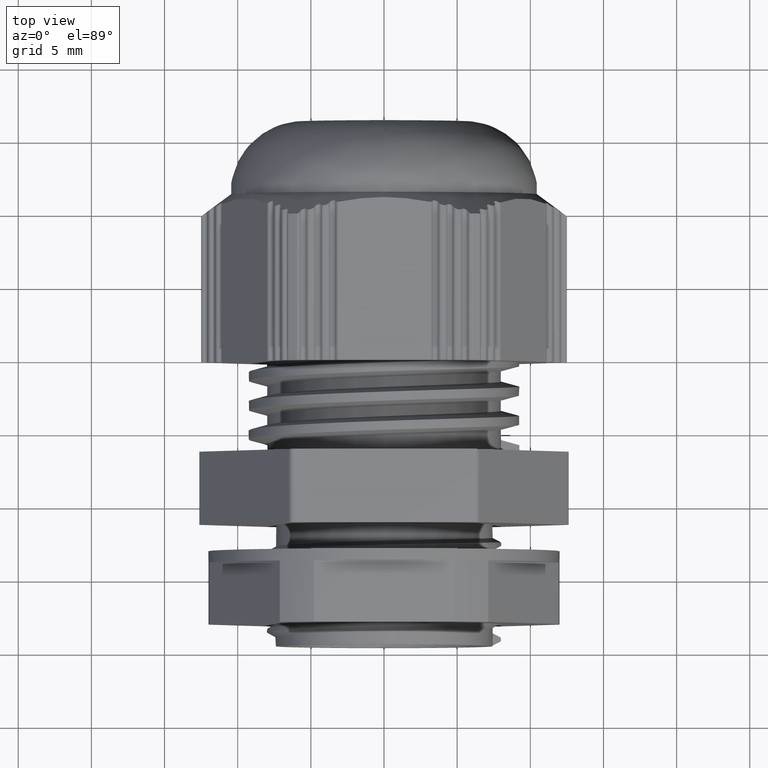
[diagram: clean part render]
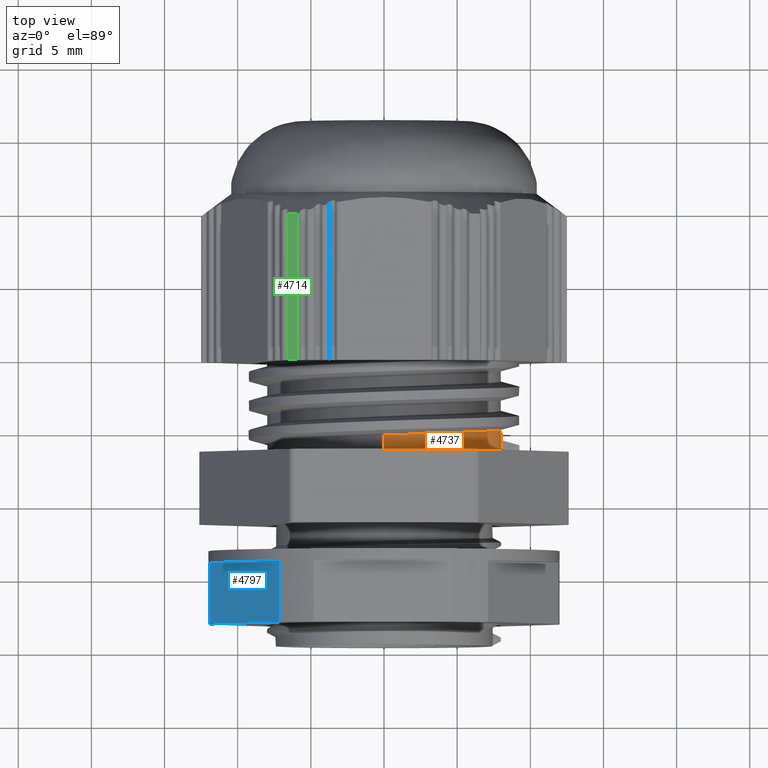
[diagram: same view with three faces highlighted in distinct colors, each labeled with its STEP entity id]
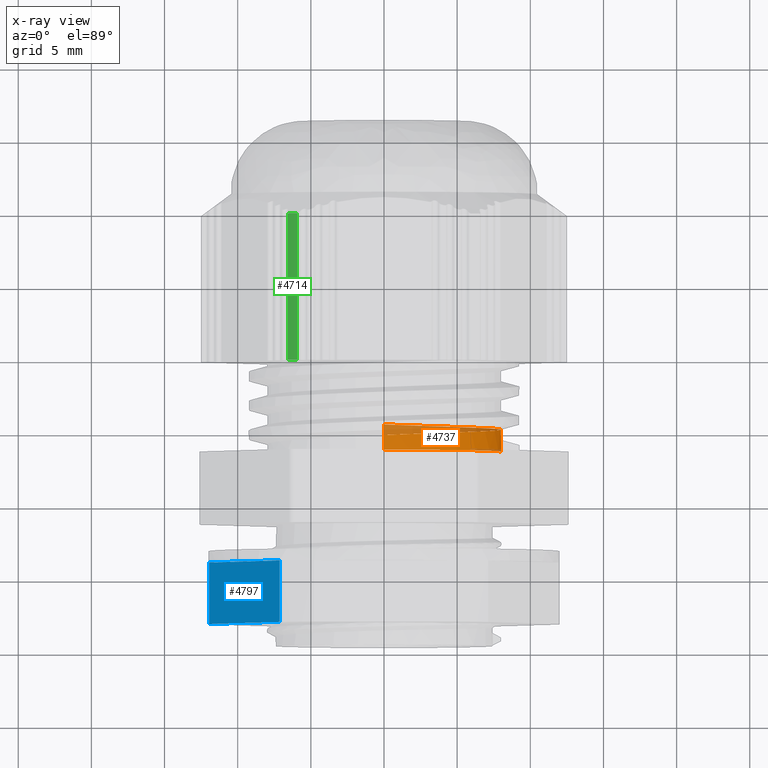
[diagram: x-ray of the same camera — body ghosted, the three highlighted faces saturated]
A machine part, top view with three faces highlighted in distinct colors.
The next image is the same camera in x-ray (body ghosted, the three faces saturated) — at least one of them is partly hidden behind the body in this view.
Their STEP definitions:

[orange] entity #4737 — the highlighted cylindrical surface (partial cylindrical patch) has radius 8 mm, axis along (-0, -1, -0).
#459 = VECTOR ( 'NONE', #1659, 1000.000000000000000 ) ;
#483 = VECTOR ( 'NONE', #2104, 1000.000000000000000 ) ;
#500 = VECTOR ( 'NONE', #1924, 1000.000000000000000 ) ;
#508 = AXIS2_PLACEMENT_3D ( 'NONE', #1741, #1711, #1743 ) ;
#514 = CIRCLE ( 'NONE', #508, 8.000000000000007100 ) ;
#1628 = CARTESIAN_POINT ( 'NONE',  ( -2.889640176918248300E-015, 0.6899474012563009400, -8.000000000000033800 ) ) ;
#1647 = CARTESIAN_POINT ( 'NONE',  ( 9.797174393178835500E-016, -16.46492342334570600, 8.000000000000007100 ) ) ;
#1659 = DIRECTION ( 'NONE',  ( -0.0000000000000000000, -1.000000000000000000, -0.0000000000000000000 ) ) ;
#1660 = LINE ( 'NONE', #1647, #459 ) ;
#1662 = CARTESIAN_POINT ( 'NONE',  ( 4.944271909998739100, -0.1100525987437229000, 6.805206466816645900 ) ) ;
#1663 = CARTESIAN_POINT ( 'NONE',  ( 1.267075522596549300, 0.6386931197094413100, -8.000000000000014200 ) ) ;
#1664 = CARTESIAN_POINT ( 'NONE',  ( 4.944271909999593500, 0.4899474012562768900, -6.805206466816023300 ) ) ;
#1665 = CARTESIAN_POINT ( 'NONE',  ( 1.267075522596033500, -0.2587983171968670800, 8.000000000000014200 ) ) ;
#1666 = CARTESIAN_POINT ( 'NONE',  ( 6.472135954999892200, 0.3899474012562771400, -4.702282018339387200 ) ) ;
#1667 = CARTESIAN_POINT ( 'NONE',  ( 8.000000000000016000, 0.1899474012562770200, 5.027733127934124100E-013 ) ) ;
#1668 = CARTESIAN_POINT ( 'NONE',  ( 7.999999999999852600, 0.08994740125627699600, 2.599357569863759700 ) ) ;
#1669 = CARTESIAN_POINT ( 'NONE',  ( 2.472135954999104400, -0.2100525987437229500, 7.608452130361400600 ) ) ;
#1672 = CARTESIAN_POINT ( 'NONE',  ( -1.333680081654574600E-015, -0.3100525987437047200, 8.000000000000005300 ) ) ;
#1675 = CARTESIAN_POINT ( 'NONE',  ( 2.472135955000063200, 0.5899474012562772000, -7.608452130361088800 ) ) ;
#1679 = CARTESIAN_POINT ( 'NONE',  ( 8.000000000000177600, 0.2899474012562770500, -2.599357569862752900 ) ) ;
#1681 = CARTESIAN_POINT ( 'NONE',  ( 6.472135954999299800, -0.01005259874372285700, 4.702282018340202500 ) ) ;
#1711 = DIRECTION ( 'NONE',  ( -0.0000000000000000000, 1.000000000000000000, -0.0000000000000000000 ) ) ;
#1741 = CARTESIAN_POINT ( 'NONE',  ( 0.0000000000000000000, -1.309188576519718400, 0.0000000000000000000 ) ) ;
#1743 = DIRECTION ( 'NONE',  ( 0.0000000000000000000, 0.0000000000000000000, -1.000000000000000000 ) ) ;
#1903 = LINE ( 'NONE', #1920, #500 ) ;
#1920 = CARTESIAN_POINT ( 'NONE',  ( 8.000000000000007100, -1.166593736519519400, 5.027733127934115100E-013 ) ) ;
#1924 = DIRECTION ( 'NONE',  ( 0.0000000000000000000, 1.000000000000000000, 0.0000000000000000000 ) ) ;
#2102 = CARTESIAN_POINT ( 'NONE',  ( 0.0000000000000000000, -16.46492342334570600, -8.000000000000007100 ) ) ;
#2104 = DIRECTION ( 'NONE',  ( -0.0000000000000000000, -1.000000000000000000, -0.0000000000000000000 ) ) ;
#2114 = LINE ( 'NONE', #2102, #483 ) ;
#2201 = CARTESIAN_POINT ( 'NONE',  ( 8.000000000000168800, -0.4231348742956991300, -2.599357569862750200 ) ) ;
#2209 = CARTESIAN_POINT ( 'NONE',  ( 1.267075522596551800, -0.07438915584253526200, -8.000000000000003600 ) ) ;
#2211 = CARTESIAN_POINT ( 'NONE',  ( 4.890160299400107300E-015, -0.02313487429567999400, -8.000000000000007100 ) ) ;
#2217 = CARTESIAN_POINT ( 'NONE',  ( 6.472135954999883400, -0.3231348742956993700, -4.702282018339382800 ) ) ;
#2255 = CARTESIAN_POINT ( 'NONE',  ( 8.000000000000007100, -0.5231348742956963800, 5.027733127934116100E-013 ) ) ;
#2263 = CARTESIAN_POINT ( 'NONE',  ( 2.472135955000060600, -0.1231348742956992600, -7.608452130361079900 ) ) ;
#2269 = CARTESIAN_POINT ( 'NONE',  ( 4.944271909999588200, -0.2231348742956991700, -6.805206466816014400 ) ) ;
#3030 = CARTESIAN_POINT ( 'NONE',  ( -2.889640176918248300E-015, 0.6899474012563009400, -8.000000000000033800 ) ) ;
#3066 = CARTESIAN_POINT ( 'NONE',  ( 9.797174393178835500E-016, -1.309188576519718400, 8.000000000000007100 ) ) ;
#3068 = CARTESIAN_POINT ( 'NONE',  ( 8.000000000000007100, -0.5231348742956963800, 5.027733127934116100E-013 ) ) ;
#3100 = CARTESIAN_POINT ( 'NONE',  ( 8.000000000000007100, -1.309188576519718000, 5.027733127934115100E-013 ) ) ;
#3118 = CARTESIAN_POINT ( 'NONE',  ( 4.890160299400107300E-015, -0.02313487429567999400, -8.000000000000007100 ) ) ;
#3131 = CARTESIAN_POINT ( 'NONE',  ( -1.333680081654574600E-015, -0.3100525987437047200, 8.000000000000005300 ) ) ;
#3199 = AXIS2_PLACEMENT_3D ( 'NONE', #13280, #13260, #13289 ) ;
#4722 =( BOUNDED_CURVE ( )  B_SPLINE_CURVE ( 2, ( #1628, #1663, #1675, #1664, #1666, #1679, #1667, #1668, #1681, #1662, #1669, #1665, #1672 ),
 .UNSPECIFIED., .F., .T. ) 
 B_SPLINE_CURVE_WITH_KNOTS ( ( 3, 2, 2, 2, 2, 2, 3 ),
 ( 0.0000000000000000000, 0.002502644857300732600, 0.007507934571901191300, 0.01251322428650165000, 0.01751851400110211400, 0.02252380371570257200, 0.02502644857300230900 ),
 .UNSPECIFIED. ) 
 CURVE ( )  GEOMETRIC_REPRESENTATION_ITEM ( )  RATIONAL_B_SPLINE_CURVE ( ( 0.9755282581475768200, 0.9755282581475719400, 1.000000000000000000, 0.9510565162951535300, 1.000000000000000000, 0.9510565162951535300, 1.000000000000000000, 0.9510565162951535300, 1.000000000000000000, 0.9510565162951535300, 1.000000000000000000, 0.9755282581475817100, 0.9755282581475768200 ) ) 
 REPRESENTATION_ITEM ( '' )  );
#4737 = ADVANCED_FACE ( 'NONE', ( #13284 ), #13241, .T. ) ;
#9179 = EDGE_LOOP ( 'NONE', ( #12919, #12900, #12938, #12921, #12890, #12933 ) ) ;
#10920 = EDGE_CURVE ( 'NONE', #14176, #12416, #1660, .T. ) ;
#10927 = EDGE_CURVE ( 'NONE', #14167, #14176, #4722, .T. ) ;
#10933 = EDGE_CURVE ( 'NONE', #12416, #14218, #514, .T. ) ;
#10946 = EDGE_CURVE ( 'NONE', #14218, #14148, #1903, .T. ) ;
#10962 = EDGE_CURVE ( 'NONE', #14167, #14222, #2114, .T. ) ;
#10965 = EDGE_CURVE ( 'NONE', #14222, #14148, #11951, .T. ) ;
#11951 =( BOUNDED_CURVE ( )  B_SPLINE_CURVE ( 2, ( #2211, #2209, #2263, #2269, #2217, #2201, #2255 ),
 .UNSPECIFIED., .F., .T. ) 
 B_SPLINE_CURVE_WITH_KNOTS ( ( 3, 2, 2, 3 ),
 ( 0.2127204634814354700, 0.2152219239073125100, 0.2202248447590656500, 0.2252277656108187500 ),
 .UNSPECIFIED. ) 
 CURVE ( )  GEOMETRIC_REPRESENTATION_ITEM ( )  RATIONAL_B_SPLINE_CURVE ( ( 0.9755282581475768200, 0.9755282581475719400, 1.000000000000000000, 0.9510565162951535300, 1.000000000000000000, 0.9510565162951535300, 1.000000000000000000 ) ) 
 REPRESENTATION_ITEM ( '' )  );
#12416 = VERTEX_POINT ( 'NONE', #3066 ) ;
#12890 = ORIENTED_EDGE ( 'NONE', *, *, #10965, .F. ) ;
#12900 = ORIENTED_EDGE ( 'NONE', *, *, #10920, .T. ) ;
#12919 = ORIENTED_EDGE ( 'NONE', *, *, #10927, .T. ) ;
#12921 = ORIENTED_EDGE ( 'NONE', *, *, #10946, .T. ) ;
#12933 = ORIENTED_EDGE ( 'NONE', *, *, #10962, .F. ) ;
#12938 = ORIENTED_EDGE ( 'NONE', *, *, #10933, .T. ) ;
#13241 = CYLINDRICAL_SURFACE ( 'NONE', #3199, 8.000000000000007100 ) ;
#13260 = DIRECTION ( 'NONE',  ( -0.0000000000000000000, -1.000000000000000000, -0.0000000000000000000 ) ) ;
#13280 = CARTESIAN_POINT ( 'NONE',  ( 0.0000000000000000000, -16.46492342334570600, 0.0000000000000000000 ) ) ;
#13284 = FACE_OUTER_BOUND ( 'NONE', #9179, .T. ) ;
#13289 = DIRECTION ( 'NONE',  ( 0.0000000000000000000, 0.0000000000000000000, -1.000000000000000000 ) ) ;
#14148 = VERTEX_POINT ( 'NONE', #3068 ) ;
#14167 = VERTEX_POINT ( 'NONE', #3030 ) ;
#14176 = VERTEX_POINT ( 'NONE', #3131 ) ;
#14218 = VERTEX_POINT ( 'NONE', #3100 ) ;
#14222 = VERTEX_POINT ( 'NONE', #3118 ) ;

[blue] entity #4797 — the highlighted planar face has unit normal (0.866, 0, -0.5).
#170 = VECTOR ( 'NONE', #10157, 1000.000000000000000 ) ;
#250 = VECTOR ( 'NONE', #10319, 1000.000000000000200 ) ;
#275 = VECTOR ( 'NONE', #10350, 1000.000000000000000 ) ;
#340 = VECTOR ( 'NONE', #6617, 1000.000000000000000 ) ;
#2985 = CARTESIAN_POINT ( 'NONE',  ( -7.128363679972483000, -8.910007087178495800, 9.653311931459027700 ) ) ;
#2987 = CARTESIAN_POINT ( 'NONE',  ( -7.128363679972486500, -13.11000708717849700, 9.653311931459024100 ) ) ;
#2999 = CARTESIAN_POINT ( 'NONE',  ( -11.92419520328518500, -13.11000708717849700, 1.346688068540966800 ) ) ;
#3001 = CARTESIAN_POINT ( 'NONE',  ( -11.92419520328518500, -8.910007087178495800, 1.346688068540966800 ) ) ;
#3242 = AXIS2_PLACEMENT_3D ( 'NONE', #5892, #5915, #5905 ) ;
#4797 = ADVANCED_FACE ( 'NONE', ( #5889 ), #5896, .F. ) ;
#5889 = FACE_OUTER_BOUND ( 'NONE', #9319, .T. ) ;
#5892 = CARTESIAN_POINT ( 'NONE',  ( -12.70170592217175600, -8.110007087178498600, 2.775557561562891400E-014 ) ) ;
#5896 = PLANE ( 'NONE',  #3242 ) ;
#5905 = DIRECTION ( 'NONE',  ( -0.4999999999999995600, 0.0000000000000000000, -0.8660254037844389300 ) ) ;
#5915 = DIRECTION ( 'NONE',  ( 0.8660254037844389300, 0.0000000000000000000, -0.4999999999999995600 ) ) ;
#6601 = LINE ( 'NONE', #6613, #340 ) ;
#6613 = CARTESIAN_POINT ( 'NONE',  ( -11.92419520328518500, -8.910007087178495800, 1.346688068540962300 ) ) ;
#6617 = DIRECTION ( 'NONE',  ( 0.0000000000000000000, 1.000000000000000000, 0.0000000000000000000 ) ) ;
#9319 = EDGE_LOOP ( 'NONE', ( #13718, #13650, #13627, #13711 ) ) ;
#10157 = DIRECTION ( 'NONE',  ( 0.4999999999999995600, -0.0000000000000000000, 0.8660254037844389300 ) ) ;
#10180 = LINE ( 'NONE', #10189, #170 ) ;
#10189 = CARTESIAN_POINT ( 'NONE',  ( -12.70170592217175600, -8.910007087178495800, 2.775557561562891400E-014 ) ) ;
#10312 = LINE ( 'NONE', #10327, #250 ) ;
#10319 = DIRECTION ( 'NONE',  ( -0.4999999999999991700, 0.0000000000000000000, -0.8660254037844390400 ) ) ;
#10327 = CARTESIAN_POINT ( 'NONE',  ( -7.128363679972488300, -13.11000708717849700, 9.653311931459025900 ) ) ;
#10350 = DIRECTION ( 'NONE',  ( -0.0000000000000000000, -1.000000000000000000, -0.0000000000000000000 ) ) ;
#10364 = CARTESIAN_POINT ( 'NONE',  ( -7.128363679972482100, -8.910007087178495800, 9.653311931459029400 ) ) ;
#10369 = LINE ( 'NONE', #10364, #275 ) ;
#10654 = EDGE_CURVE ( 'NONE', #11911, #11886, #10180, .T. ) ;
#10687 = EDGE_CURVE ( 'NONE', #11867, #11905, #10312, .T. ) ;
#10698 = EDGE_CURVE ( 'NONE', #11886, #11867, #10369, .T. ) ;
#10727 = EDGE_CURVE ( 'NONE', #11905, #11911, #6601, .T. ) ;
#11867 = VERTEX_POINT ( 'NONE', #2987 ) ;
#11886 = VERTEX_POINT ( 'NONE', #2985 ) ;
#11905 = VERTEX_POINT ( 'NONE', #2999 ) ;
#11911 = VERTEX_POINT ( 'NONE', #3001 ) ;
#13627 = ORIENTED_EDGE ( 'NONE', *, *, #10687, .F. ) ;
#13650 = ORIENTED_EDGE ( 'NONE', *, *, #10727, .F. ) ;
#13711 = ORIENTED_EDGE ( 'NONE', *, *, #10698, .F. ) ;
#13718 = ORIENTED_EDGE ( 'NONE', *, *, #10654, .F. ) ;

[green] entity #4714 — the highlighted cylindrical surface (partial cylindrical patch) has radius 12.5 mm, axis along (0, -1, -0).
#537 = AXIS2_PLACEMENT_3D ( 'NONE', #8406, #8445, #8421 ) ;
#580 = CIRCLE ( 'NONE', #537, 12.50000000000000700 ) ;
#611 = VECTOR ( 'NONE', #11958, 1000.000000000000000 ) ;
#675 = VECTOR ( 'NONE', #12168, 1000.000000000000000 ) ;
#706 = AXIS2_PLACEMENT_3D ( 'NONE', #12159, #12165, #12160 ) ;
#714 = CIRCLE ( 'NONE', #706, 12.50000000000000700 ) ;
#2810 = CARTESIAN_POINT ( 'NONE',  ( -6.557693919869263900, 4.784379126764807000, 10.64174095030084800 ) ) ;
#2848 = CARTESIAN_POINT ( 'NONE',  ( -6.557693919869265600, 14.78437912676480800, 10.64174095030084800 ) ) ;
#2863 = CARTESIAN_POINT ( 'NONE',  ( -5.937171043518928200, 14.78437912676481100, 11.00000000000004400 ) ) ;
#2919 = CARTESIAN_POINT ( 'NONE',  ( -5.937171043518925600, 4.784379126764805300, 11.00000000000004400 ) ) ;
#3777 = AXIS2_PLACEMENT_3D ( 'NONE', #12639, #12645, #12705 ) ;
#4714 = ADVANCED_FACE ( 'NONE', ( #12629 ), #12633, .T. ) ;
#8406 = CARTESIAN_POINT ( 'NONE',  ( -6.134300663366001800E-015, 4.784379126764805300, 8.329101922370225900E-016 ) ) ;
#8421 = DIRECTION ( 'NONE',  ( 0.0000000000000000000, 0.0000000000000000000, -1.000000000000000000 ) ) ;
#8445 = DIRECTION ( 'NONE',  ( -1.935548152435616400E-017, 1.000000000000000000, 3.352467740514570300E-017 ) ) ;
#9176 = EDGE_LOOP ( 'NONE', ( #13216, #13149, #13238, #13265 ) ) ;
#11068 = EDGE_CURVE ( 'NONE', #11691, #11809, #580, .T. ) ;
#11113 = EDGE_CURVE ( 'NONE', #11731, #11691, #11988, .T. ) ;
#11162 = EDGE_CURVE ( 'NONE', #11753, #11731, #714, .T. ) ;
#11176 = EDGE_CURVE ( 'NONE', #11753, #11809, #12191, .T. ) ;
#11691 = VERTEX_POINT ( 'NONE', #2810 ) ;
#11731 = VERTEX_POINT ( 'NONE', #2848 ) ;
#11753 = VERTEX_POINT ( 'NONE', #2863 ) ;
#11809 = VERTEX_POINT ( 'NONE', #2919 ) ;
#11958 = DIRECTION ( 'NONE',  ( 1.935548152435616400E-017, -1.000000000000000000, -3.352467740514570300E-017 ) ) ;
#11975 = CARTESIAN_POINT ( 'NONE',  ( -6.557693919869274500, 57.55669965792783000, 10.64174095030084500 ) ) ;
#11988 = LINE ( 'NONE', #11975, #611 ) ;
#12159 = CARTESIAN_POINT ( 'NONE',  ( -6.327855478609563500E-015, 14.78437912676480800, 1.168156966288480000E-015 ) ) ;
#12160 = DIRECTION ( 'NONE',  ( 0.0000000000000000000, 0.0000000000000000000, -1.000000000000000000 ) ) ;
#12165 = DIRECTION ( 'NONE',  ( 1.935548152435616400E-017, -1.000000000000000000, -3.352467740514570300E-017 ) ) ;
#12168 = DIRECTION ( 'NONE',  ( 1.771217340939368600E-016, -1.000000000000000000, 5.756171098493914200E-017 ) ) ;
#12173 = CARTESIAN_POINT ( 'NONE',  ( -5.937171043518931800, 17.16639688560347600, 11.00000000000005700 ) ) ;
#12191 = LINE ( 'NONE', #12173, #675 ) ;
#12629 = FACE_OUTER_BOUND ( 'NONE', #9176, .T. ) ;
#12633 = CYLINDRICAL_SURFACE ( 'NONE', #3777, 12.50000000000000700 ) ;
#12639 = CARTESIAN_POINT ( 'NONE',  ( -7.155734338404329300E-015, 57.55669965792783000, 2.602085213965210600E-015 ) ) ;
#12645 = DIRECTION ( 'NONE',  ( 1.935548152435616400E-017, -1.000000000000000000, -3.352467740514570300E-017 ) ) ;
#12705 = DIRECTION ( 'NONE',  ( 0.0000000000000000000, 0.0000000000000000000, -1.000000000000000000 ) ) ;
#13149 = ORIENTED_EDGE ( 'NONE', *, *, #11176, .F. ) ;
#13216 = ORIENTED_EDGE ( 'NONE', *, *, #11068, .T. ) ;
#13238 = ORIENTED_EDGE ( 'NONE', *, *, #11162, .T. ) ;
#13265 = ORIENTED_EDGE ( 'NONE', *, *, #11113, .T. ) ;